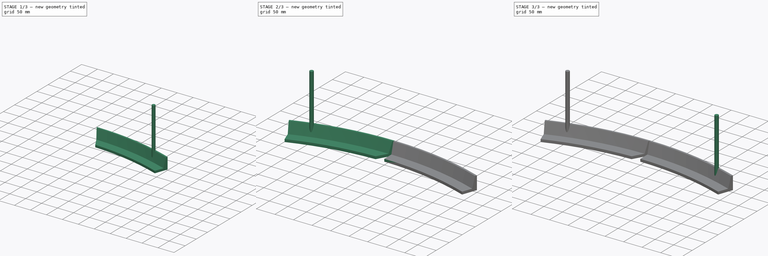
[diagram: build sequence overview — one tinted view per stage of 3, left to right]
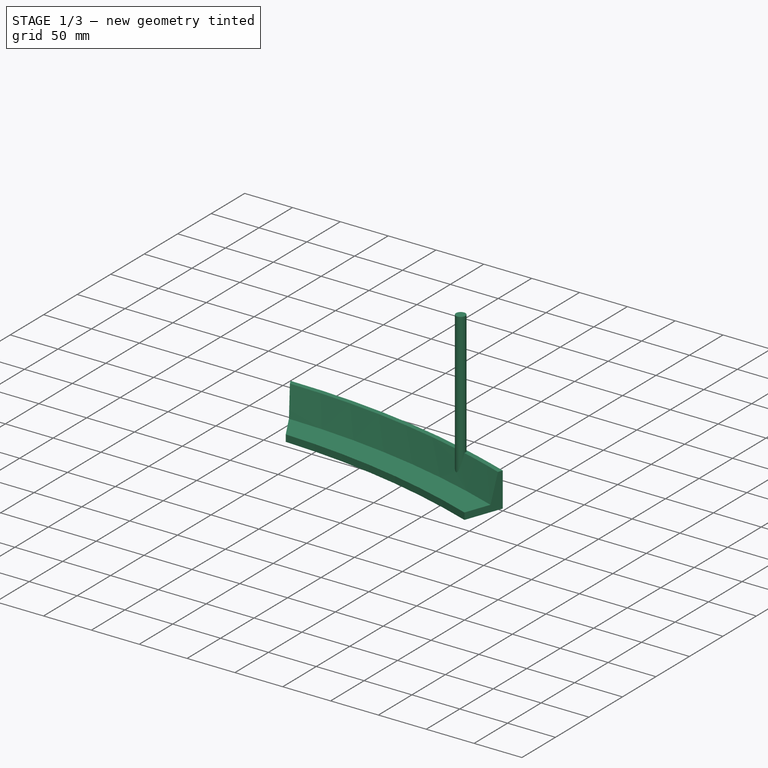
[diagram: stage 1 of 3 — iso view after this stage's code; geometry added in this stage tinted green]
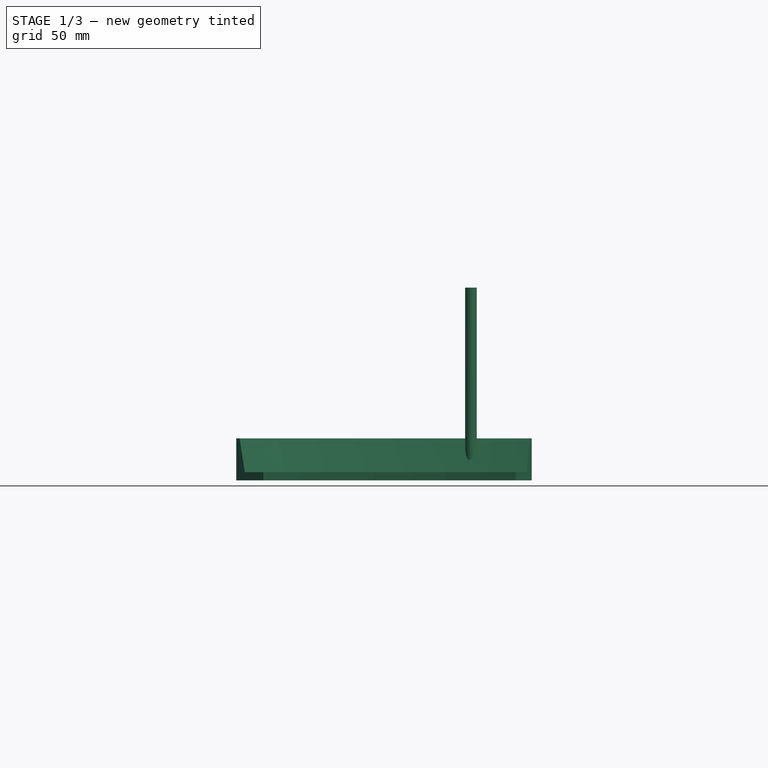
[diagram: stage 1 of 3 — front view after this stage's code; geometry added in this stage tinted green]
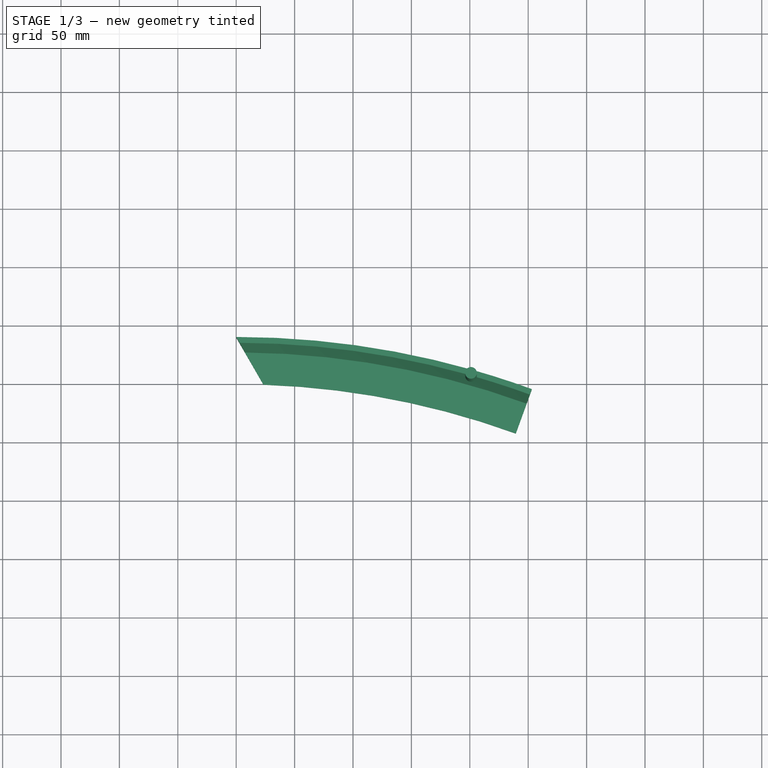
[diagram: stage 1 of 3 — top view after this stage's code; geometry added in this stage tinted green]
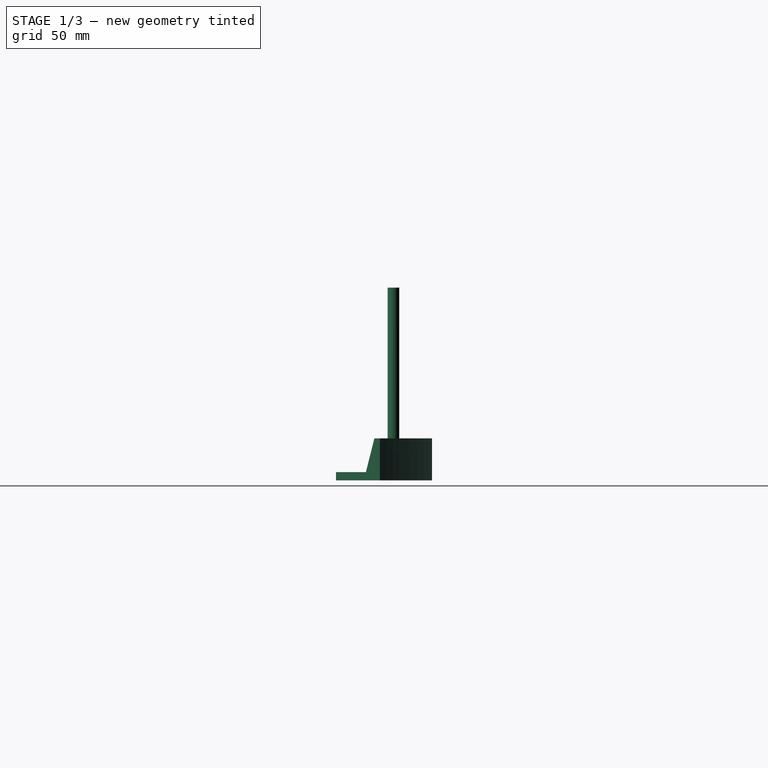
[diagram: stage 1 of 3 — right view after this stage's code; geometry added in this stage tinted green]
FCSTD DOCUMENT  (FreeCAD 0.21R33771 (Git))
Label: Dart Shield
License: All rights reserved
LicenseURL: https://en.wikipedia.org/wiki/All_rights_reserved
objects: Sketcher::SketchObject×6, PartDesign::AdditivePipe×3, PartDesign::Body×3, PartDesign::SubtractiveBox×2, PartDesign::AdditiveCylinder×2, Part::Mirroring×1
note: 24 computed .brp shape members not serialized (recipe doc carries the construction recipe); baked Part::Feature solids carry a one-line shape summary decoded from their .brp

FEATURE [PartDesign::Body] Body002
  Group = -> [Sketch004,Sketch005,AdditivePipe001,Box,Cylinder]
  Origin = -> Origin002
  Tip = -> Cylinder
FEATURE [Sketcher::SketchObject] Sketch008
  FullyConstrained = true
  MapMode = 5
  Placement = pos=(0,0,0) rot=(0.57735,0.57735,0.57735;2.0944rad)
  Support = -> [YZ_Plane003]
  sketch-geometry (6):
    g0: LineSegment StartX=0 StartY=0 StartZ=0 EndX=0 EndY=7 EndZ=0
    g1: LineSegment StartX=0 StartY=7 StartZ=0 EndX=27.2354 EndY=7 EndZ=0
    g2: LineSegment StartX=27.2354 StartY=7 StartZ=0 EndX=35 EndY=35.9778 EndZ=0
    g3: LineSegment StartX=35 StartY=35.9778 StartZ=0 EndX=40 EndY=35.9778 EndZ=0
    g4: LineSegment StartX=40 StartY=35.9778 StartZ=0 EndX=40 EndY=0 EndZ=0
    g5: LineSegment StartX=40 StartY=0 StartZ=0 EndX=0 EndY=0 EndZ=0
  constraints (17):
    c: Coincident(g0,g-1)
    c: PointOnObject(g0,g-2)
    c: Coincident(g1,g0)
    c: Horizontal(g1)
    c: Coincident(g2,g1)
    c: Coincident(g3,g2)
    c: Horizontal(g3)
    c: Coincident(g4,g3)
    c: PointOnObject(g4,g-1)
    c: Vertical(g4)
    c: Coincident(g5,g4)
    c: Coincident(g5,g0)
    c: Distance(g0) = 7
    c: Distance(g2) = 30
    c: Distance(g3) = 5
    c: Angle(g2) = 1.309
    c: Distance(g5) = 40
FEATURE [Sketcher::SketchObject] Sketch009
  FullyConstrained = true
  MapMode = 5
  Support = -> [XY_Plane003]
  sketch-geometry (1):
    g0: ArcOfCircle CenterX=0 CenterY=-700 CenterZ=0 NormalX=0 NormalY=0 NormalZ=1 AngleXU=0 Radius=700 StartAngle=1.22173 EndAngle=1.5708
  constraints (4):
    c: PointOnObject(g0,g-2)
    c: Coincident(g0,g-1)
    c: Radius(g0) = 700
    c: Angle(g0) = 0.349066
FEATURE [PartDesign::AdditivePipe] AdditivePipe003
  AuxilleryCurvelinear = true
  AuxillerySpineTangent = false
  Binormal = (0,0,0)
  Mode = 0
  Placement = pos=(0,0,0) rot=(0.57735,0.57735,0.57735;2.0944rad)
  Profile = -> Sketch008
  Spine = -> Sketch009
  SpineTangent = false
  Transformation = 0
  Transition = 2
FEATURE [PartDesign::SubtractiveBox] Box001
  AttacherType = Attacher::AttachEngine3D
  AttachmentOffset = pos=(0,40,0) rot=(0,0,1;3.66519rad)
  BaseFeature = -> AdditivePipe003
  Height = 100
  Length = 100
  MapMode = 5
  Placement = pos=(0,40,0) rot=(0,0,1;3.66519rad)
  Support = -> [XY_Plane003]
  Width = 100
FEATURE [PartDesign::AdditiveCylinder] Cylinder001
  Angle = 360
  AttacherType = Attacher::AttachEngine3D
  AttachmentOffset = pos=(201,7,0) rot=(0,0,1;0rad)
  BaseFeature = -> Box001
  FirstAngle = 0
  Height = 165
  MapMode = 2
  Placement = pos=(201,7,0) rot=(0,0,1;0rad)
  Radius = 5
  SecondAngle = 0
  Support = -> [XY_Plane003]
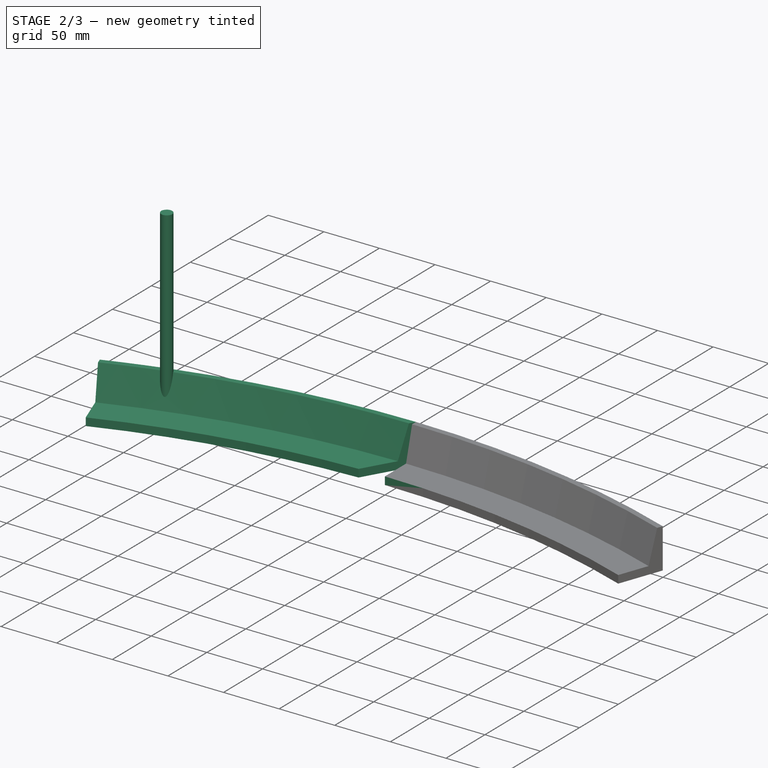
[diagram: stage 2 of 3 — iso view after this stage's code; geometry added in this stage tinted green]
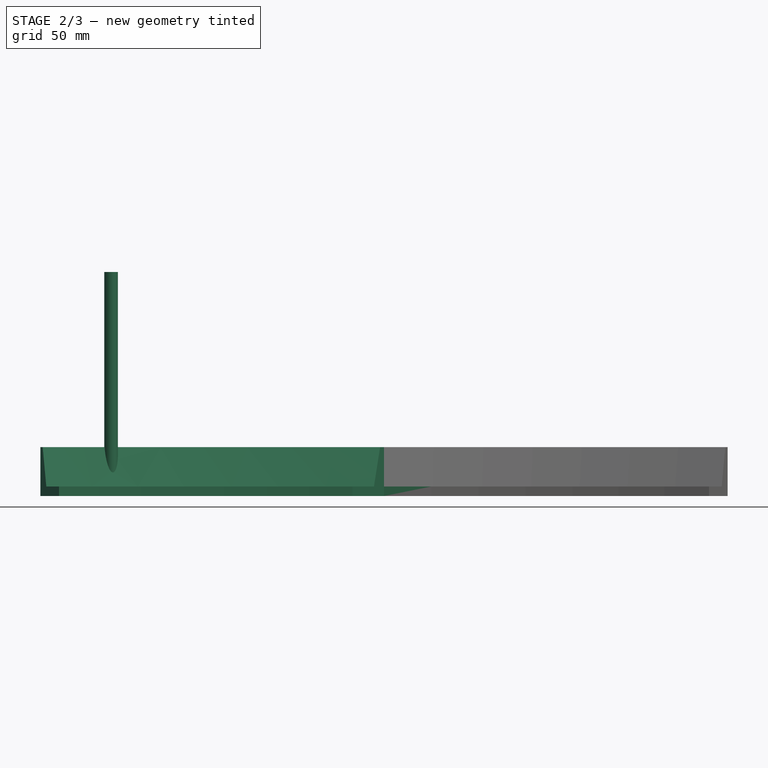
[diagram: stage 2 of 3 — front view after this stage's code; geometry added in this stage tinted green]
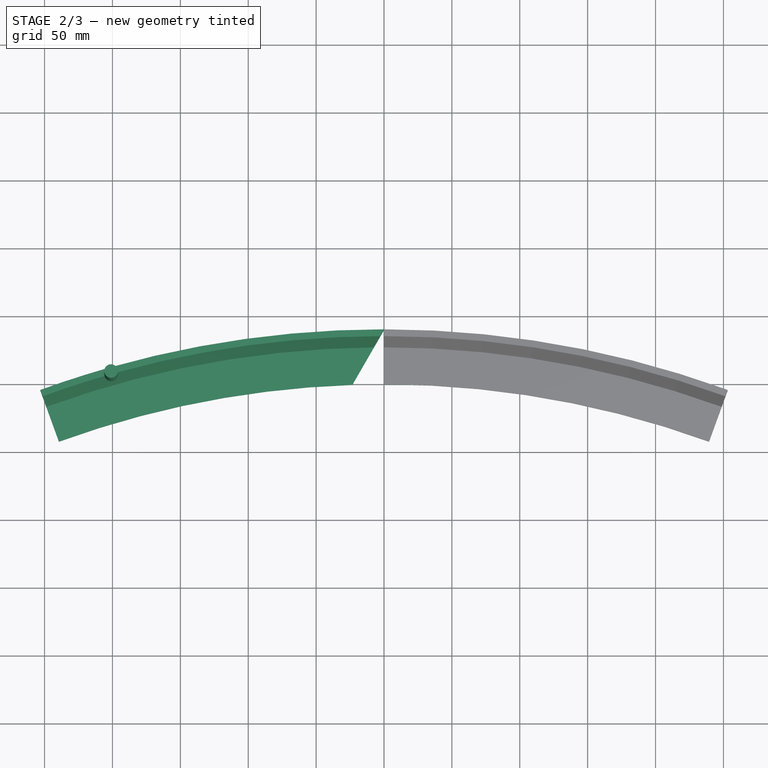
[diagram: stage 2 of 3 — top view after this stage's code; geometry added in this stage tinted green]
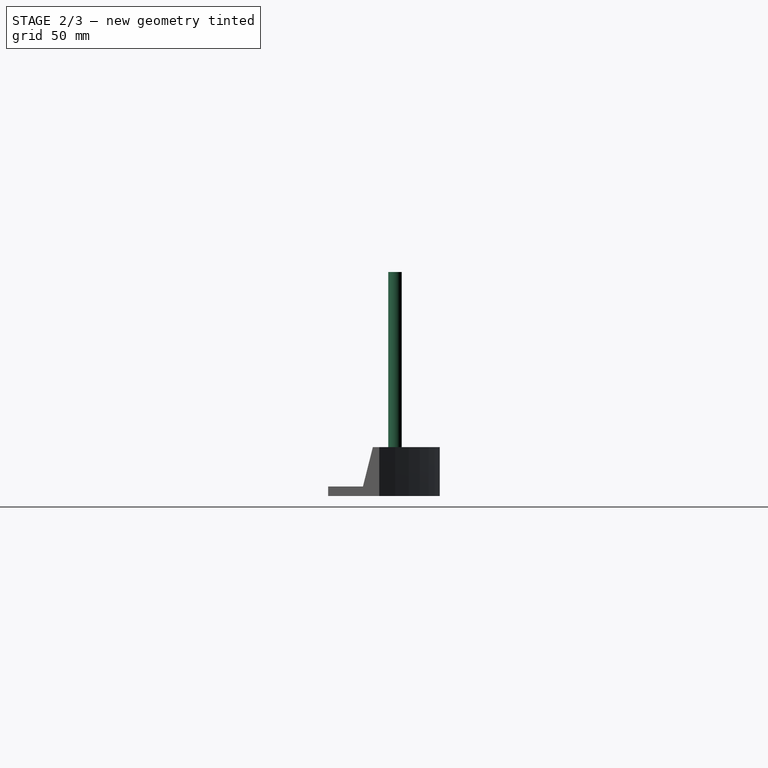
[diagram: stage 2 of 3 — right view after this stage's code; geometry added in this stage tinted green]
FEATURE [PartDesign::Body] Body003
  Group = -> [Sketch008,Sketch009,AdditivePipe003,Box001,Cylinder001]
  Origin = -> Origin003
  Tip = -> Cylinder001
FEATURE [Sketcher::SketchObject] Sketch007
  FullyConstrained = true
  MapMode = 5
  Support = -> [XY_Plane]
  sketch-geometry (2):
    g0: ArcOfCircle CenterX=0 CenterY=-700 CenterZ=0 NormalX=0 NormalY=0 NormalZ=1 AngleXU=0 Radius=700 StartAngle=1.22173 EndAngle=1.5708
    g1: ArcOfCircle CenterX=0 CenterY=-700 CenterZ=0 NormalX=0 NormalY=0 NormalZ=1 AngleXU=0 Radius=700 StartAngle=0.872665 EndAngle=1.22173
  constraints (7):
    c: PointOnObject(g0,g-2)
    c: Coincident(g0,g-1)
    c: Coincident(g1,g0)
    c: Coincident(g1,g0)
    c: Angle(g0) = 0.349066
    c: Angle(g1) = 0.349066
    c: Radius(g1) = 700
FEATURE [Sketcher::SketchObject] Sketch006
  FullyConstrained = true
  MapMode = 5
  Placement = pos=(0,0,0) rot=(0.57735,0.57735,0.57735;2.0944rad)
  Support = -> [YZ_Plane]
  sketch-geometry (6):
    g0: LineSegment StartX=0 StartY=0 StartZ=0 EndX=0 EndY=7 EndZ=0
    g1: LineSegment StartX=0 StartY=7 StartZ=0 EndX=27.2354 EndY=7 EndZ=0
    g2: LineSegment StartX=27.2354 StartY=7 StartZ=0 EndX=35 EndY=35.9778 EndZ=0
    g3: LineSegment StartX=35 StartY=35.9778 StartZ=0 EndX=40 EndY=35.9778 EndZ=0
    g4: LineSegment StartX=40 StartY=35.9778 StartZ=0 EndX=40 EndY=0 EndZ=0
    g5: LineSegment StartX=40 StartY=0 StartZ=0 EndX=0 EndY=0 EndZ=0
  constraints (17):
    c: Coincident(g0,g-1)
    c: PointOnObject(g0,g-2)
    c: Coincident(g1,g0)
    c: Horizontal(g1)
    c: Coincident(g2,g1)
    c: Coincident(g3,g2)
    c: Horizontal(g3)
    c: Coincident(g4,g3)
    c: PointOnObject(g4,g-1)
    c: Vertical(g4)
    c: Coincident(g5,g4)
    c: Coincident(g5,g0)
    c: Distance(g0) = 7
    c: Distance(g2) = 30
    c: Distance(g3) = 5
    c: Angle(g2) = 1.309
    c: Distance(g5) = 40
FEATURE [PartDesign::AdditivePipe] AdditivePipe002
  AuxilleryCurvelinear = true
  AuxillerySpineTangent = false
  Binormal = (0,0,0)
  Mode = 0
  Placement = pos=(0,0,0) rot=(1,1,1;2.0944rad)
  Profile = -> Sketch006
  Spine = -> Sketch007 [Edge1]
  SpineTangent = false
  Transformation = 0
  Transition = 2
FEATURE [PartDesign::Body] Body
  Group = -> [Sketch007,AdditivePipe002,Sketch006]
  Origin = -> Origin
  Placement = pos=(0,-100,0) rot=(0,0,1;0rad)
  Tip = -> AdditivePipe002
FEATURE [Part::Mirroring] Part__Mirroring  label="Body003 (Mirror #1)"
  Base = (0,0,0)
  Normal = (1,0,0)
  Source = -> Body003
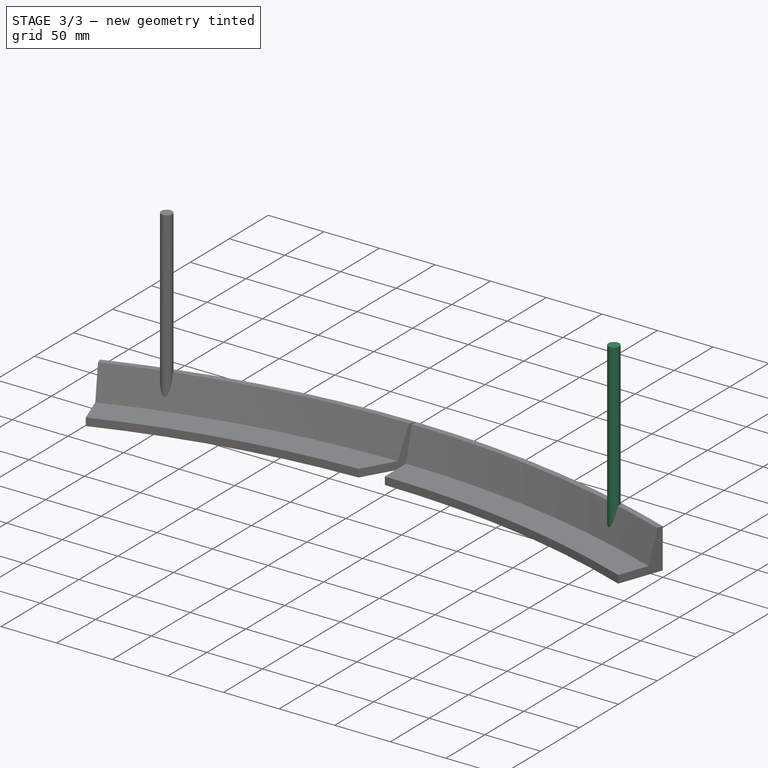
[diagram: stage 3 of 3 — iso view after this stage's code; geometry added in this stage tinted green]
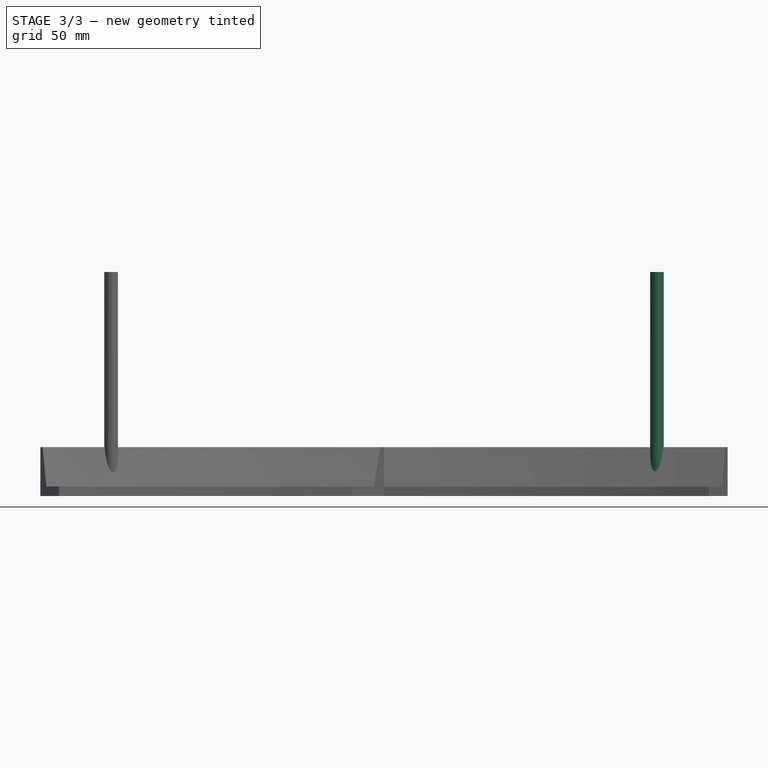
[diagram: stage 3 of 3 — front view after this stage's code; geometry added in this stage tinted green]
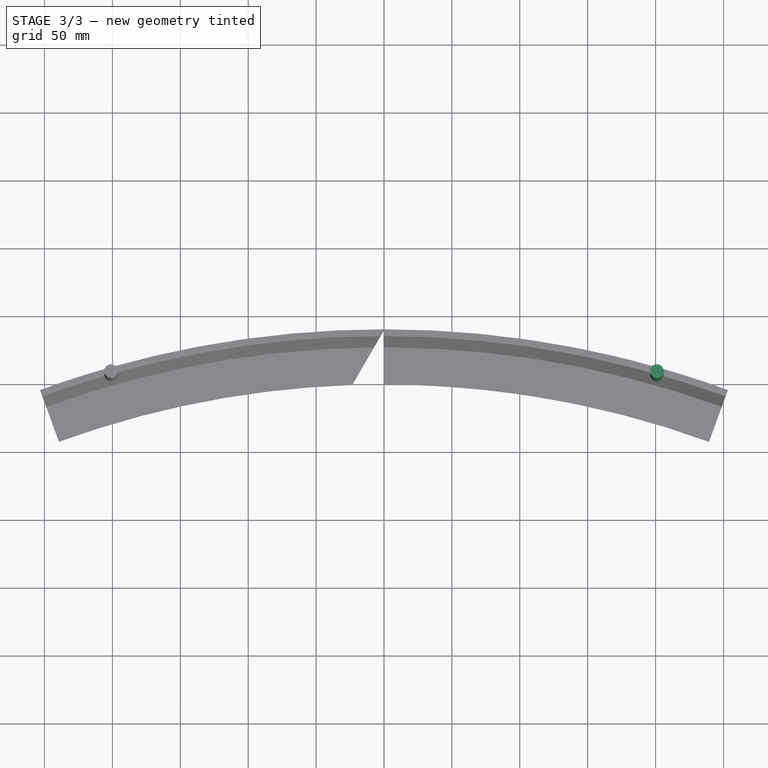
[diagram: stage 3 of 3 — top view after this stage's code; geometry added in this stage tinted green]
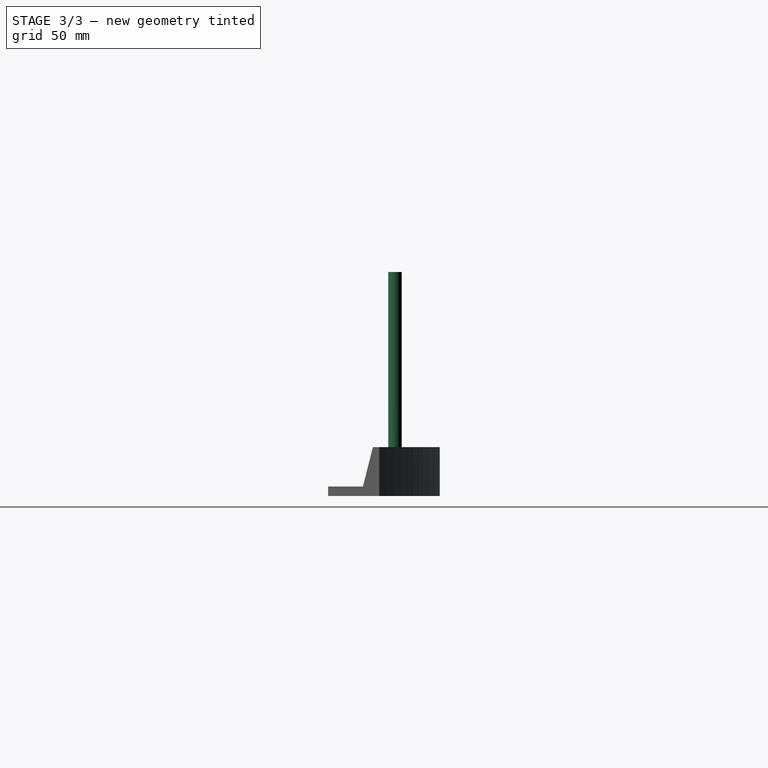
[diagram: stage 3 of 3 — right view after this stage's code; geometry added in this stage tinted green]
FEATURE [Sketcher::SketchObject] Sketch004
  FullyConstrained = true
  MapMode = 5
  Placement = pos=(0,0,0) rot=(0.57735,0.57735,0.57735;2.0944rad)
  Support = -> [YZ_Plane002]
  sketch-geometry (6):
    g0: LineSegment StartX=0 StartY=0 StartZ=0 EndX=0 EndY=7 EndZ=0
    g1: LineSegment StartX=0 StartY=7 StartZ=0 EndX=27.2354 EndY=7 EndZ=0
    g2: LineSegment StartX=27.2354 StartY=7 StartZ=0 EndX=35 EndY=35.9778 EndZ=0
    g3: LineSegment StartX=35 StartY=35.9778 StartZ=0 EndX=40 EndY=35.9778 EndZ=0
    g4: LineSegment StartX=40 StartY=35.9778 StartZ=0 EndX=40 EndY=0 EndZ=0
    g5: LineSegment StartX=40 StartY=0 StartZ=0 EndX=0 EndY=0 EndZ=0
  constraints (17):
    c: Coincident(g0,g-1)
    c: PointOnObject(g0,g-2)
    c: Coincident(g1,g0)
    c: Horizontal(g1)
    c: Coincident(g2,g1)
    c: Coincident(g3,g2)
    c: Horizontal(g3)
    c: Coincident(g4,g3)
    c: PointOnObject(g4,g-1)
    c: Vertical(g4)
    c: Coincident(g5,g4)
    c: Coincident(g5,g0)
    c: Distance(g0) = 7
    c: Distance(g2) = 30
    c: Distance(g3) = 5
    c: Angle(g2) = 1.309
    c: Distance(g5) = 40
FEATURE [Sketcher::SketchObject] Sketch005
  FullyConstrained = true
  MapMode = 5
  Support = -> [XY_Plane002]
  sketch-geometry (1):
    g0: ArcOfCircle CenterX=0 CenterY=-700 CenterZ=0 NormalX=0 NormalY=0 NormalZ=1 AngleXU=0 Radius=700 StartAngle=1.22173 EndAngle=1.5708
  constraints (4):
    c: PointOnObject(g0,g-2)
    c: Coincident(g0,g-1)
    c: Radius(g0) = 700
    c: Angle(g0) = 0.349066
FEATURE [PartDesign::AdditivePipe] AdditivePipe001
  AuxilleryCurvelinear = true
  AuxillerySpineTangent = false
  Binormal = (0,0,0)
  Mode = 0
  Placement = pos=(0,0,0) rot=(1,1,1;2.0944rad)
  Profile = -> Sketch004
  Spine = -> Sketch005
  SpineTangent = false
  Transformation = 0
  Transition = 2
FEATURE [PartDesign::SubtractiveBox] Box
  AttacherType = Attacher::AttachEngine3D
  AttachmentOffset = pos=(0,40,0) rot=(0,0,1;3.66519rad)
  BaseFeature = -> AdditivePipe001
  Height = 100
  Length = 100
  MapMode = 5
  Placement = pos=(0,40,0) rot=(0,0,1;3.66519rad)
  Support = -> [XY_Plane002]
  Width = 100
FEATURE [PartDesign::AdditiveCylinder] Cylinder
  Angle = 360
  AttacherType = Attacher::AttachEngine3D
  AttachmentOffset = pos=(201,7,0) rot=(0,0,1;0rad)
  BaseFeature = -> Box
  FirstAngle = 0
  Height = 165
  MapMode = 2
  Placement = pos=(201,7,0) rot=(0,0,1;0rad)
  Radius = 5
  SecondAngle = 0
  Support = -> [XY_Plane002]
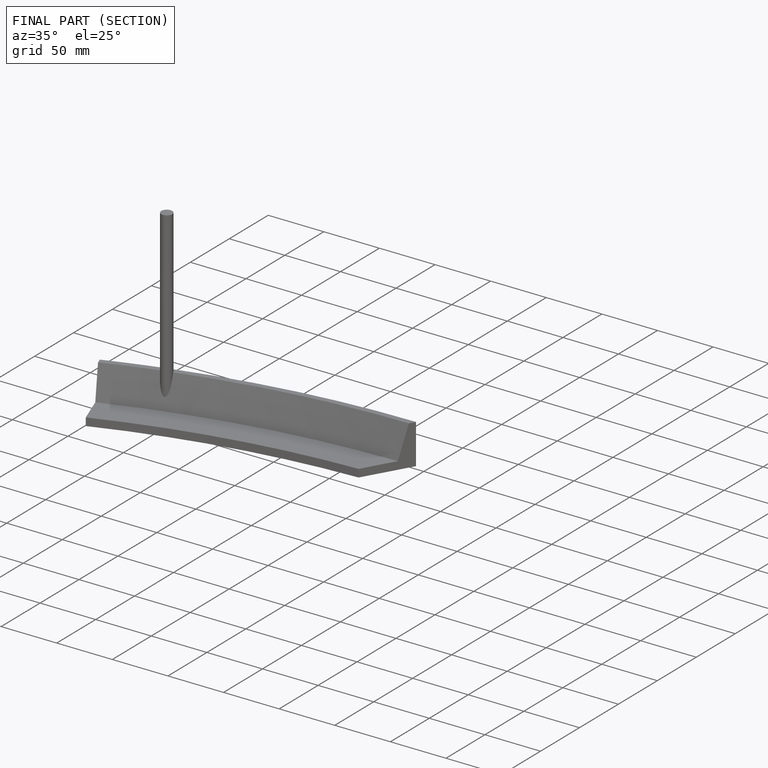
[diagram: finished part — half-section view (interior)]
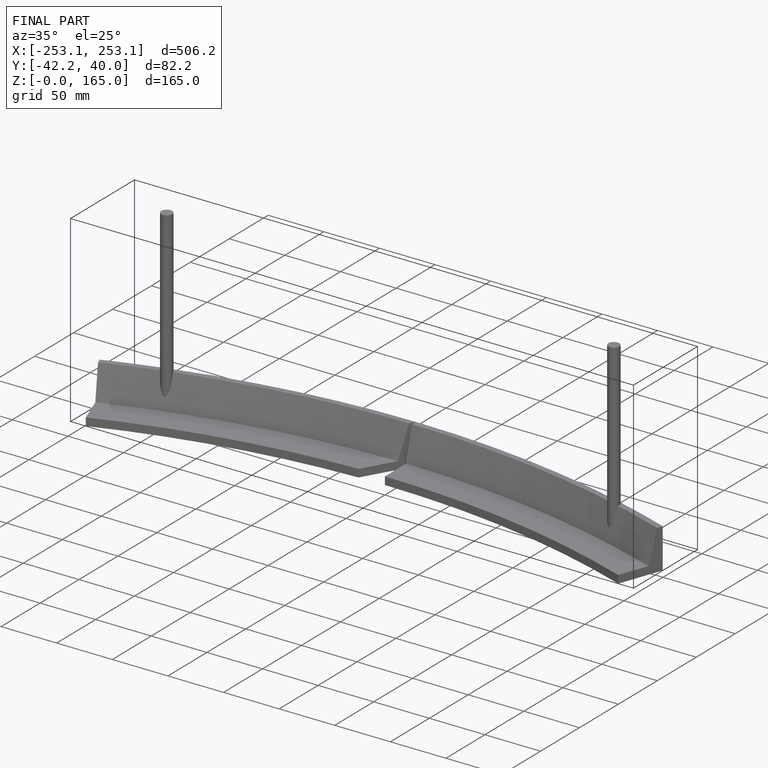
[diagram: finished part — iso view with bounding-box wireframe]
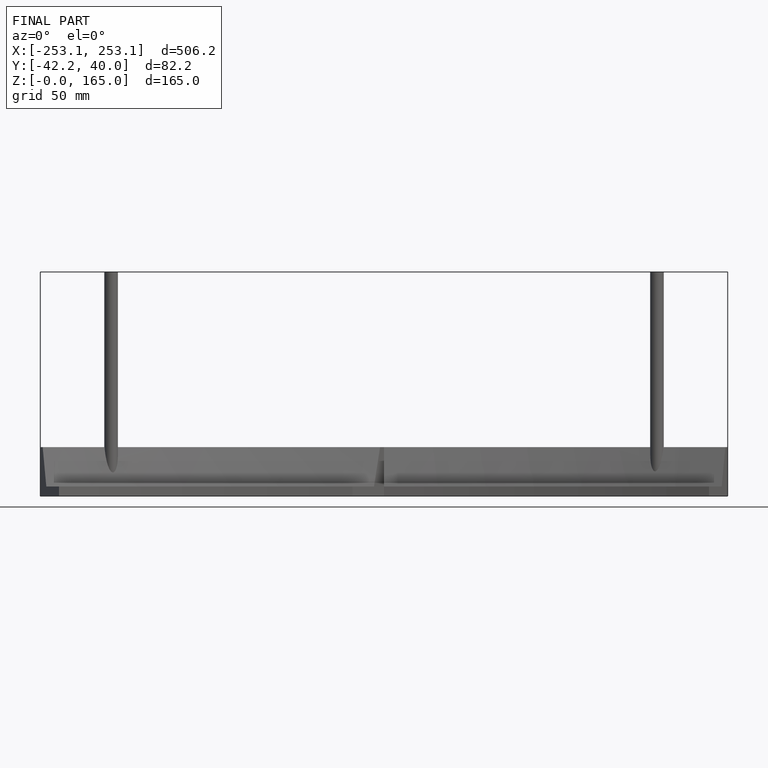
[diagram: finished part — front view with bounding-box wireframe]
